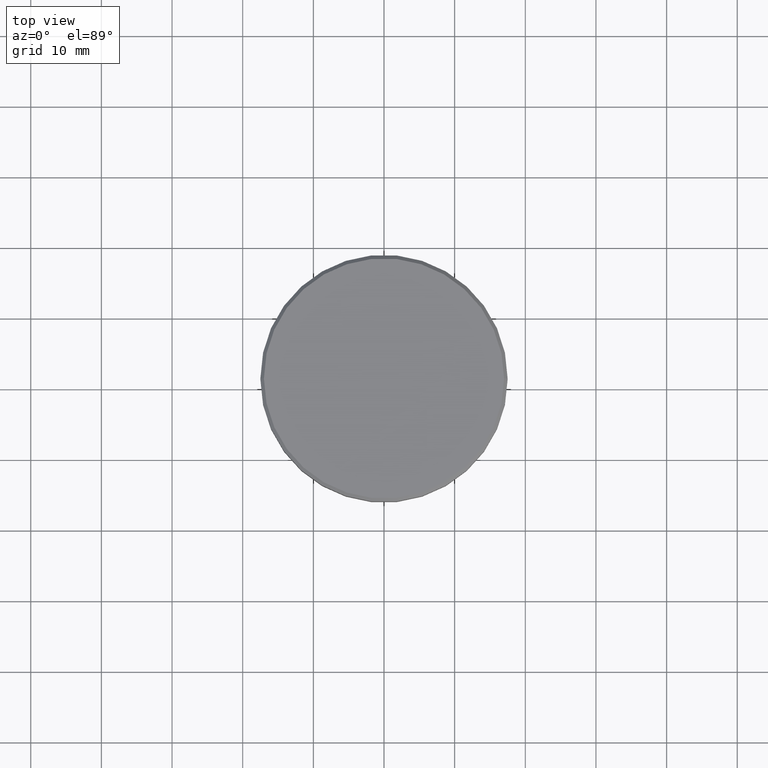
[diagram: clean part render]
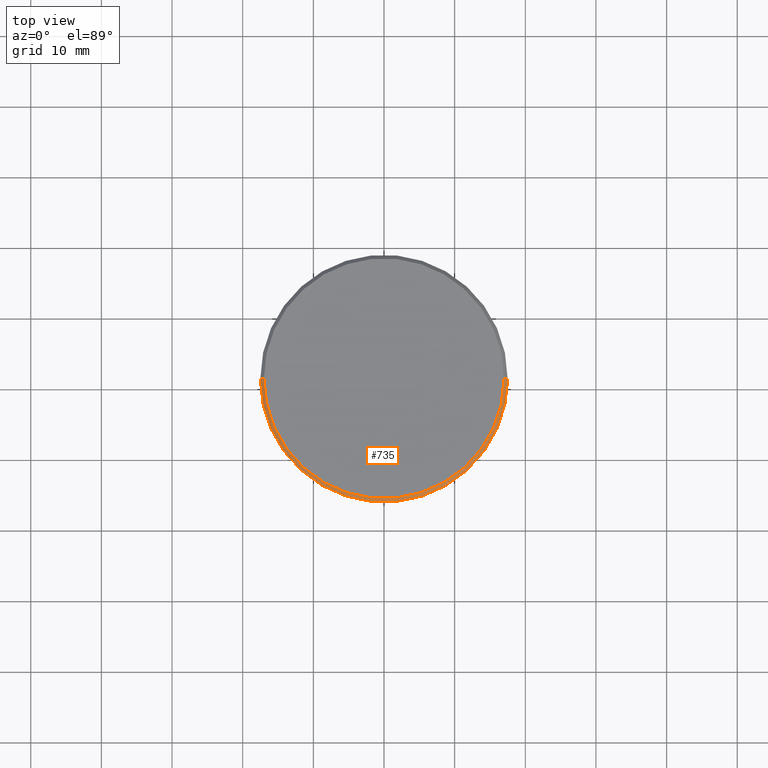
[diagram: same view with one face highlighted and labeled with its STEP entity id]
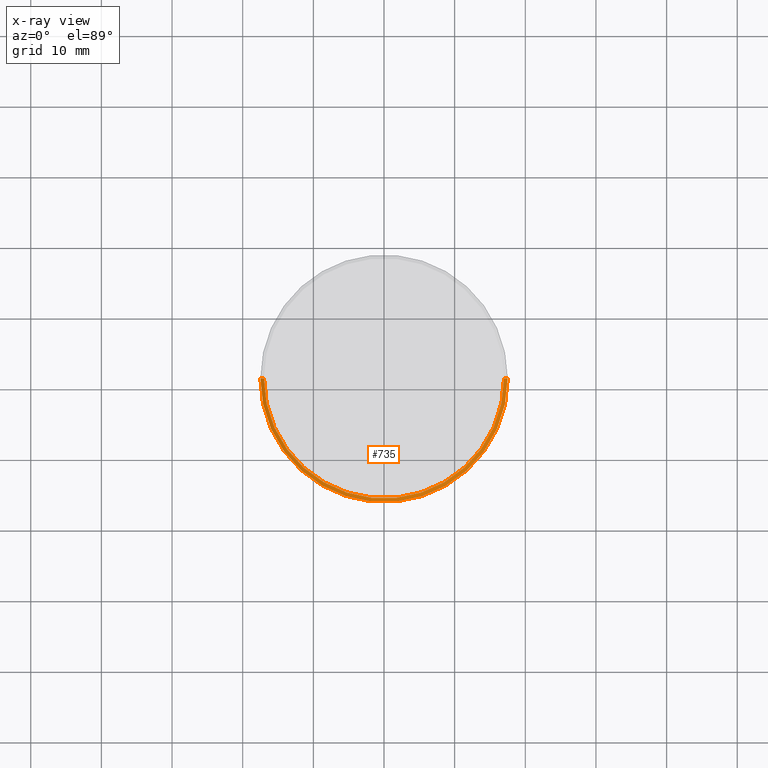
[diagram: x-ray of the same camera — body ghosted, the highlighted face saturated]
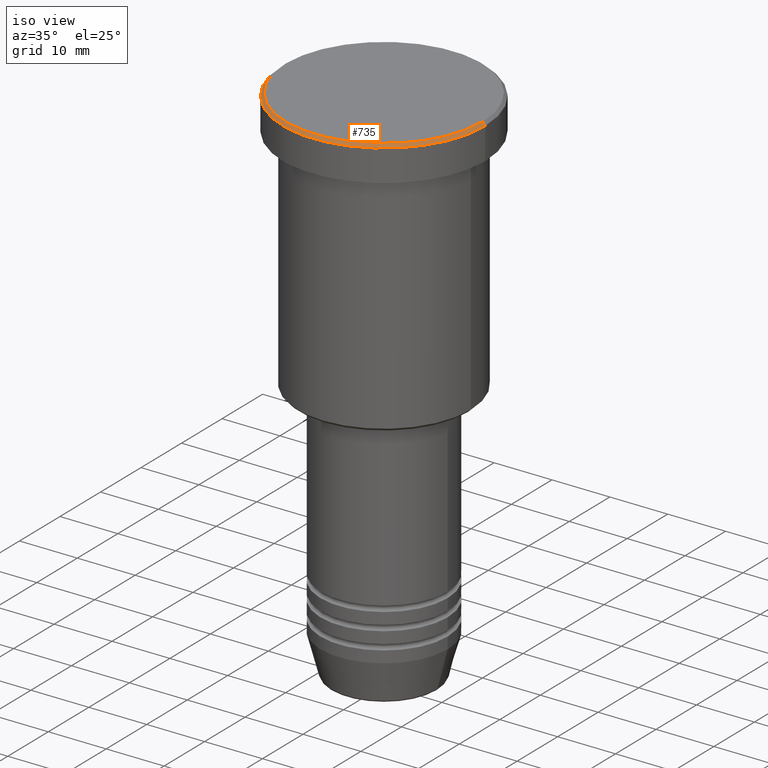
[diagram: same view with one face highlighted and labeled with its STEP entity id]
A machine part, top view. The second image highlights one B-rep face of the part: STEP entity #735.
The next image is the same camera in x-ray: the body ghosted, the highlighted face saturated — about 0% of this face is hidden behind the body in this view.
A second angle (iso view) of the same face is appended — the face is thin or edge-on in the first view.
In plain terms, the highlighted conical surface has half-angle 45 deg.
Its self-contained STEP definition (entity closure, byte-faithful):
#4 = LINE ( 'NONE', #558, #407 ) ;
#53 = EDGE_CURVE ( 'NONE', #490, #703, #931, .T. ) ;
#55 = CARTESIAN_POINT ( 'NONE',  ( 0.000000000000000000, 0.000000000000000000, 0.000000000000000000 ) ) ;
#66 = CARTESIAN_POINT ( 'NONE',  ( 0.000000000000000000, 0.000000000000000000, 0.000000000000000000 ) ) ;
#112 = CARTESIAN_POINT ( 'NONE',  ( 17.00000000000000000, 2.112515728529184067E-15, 0.000000000000000000 ) ) ;
#117 = LINE ( 'NONE', #950, #949 ) ;
#133 = ORIENTED_EDGE ( 'NONE', *, *, #53, .F. ) ;
#154 = CARTESIAN_POINT ( 'NONE',  ( 0.000000000000000000, 0.000000000000000000, -0.5000000000000142109 ) ) ;
#183 = AXIS2_PLACEMENT_3D ( 'NONE', #55, #799, #1172 ) ;
#222 = EDGE_CURVE ( 'NONE', #490, #639, #4, .T. ) ;
#267 = DIRECTION ( 'NONE',  ( -0.7071067811865378028, 0.000000000000000000, -0.7071067811865573427 ) ) ;
#315 = DIRECTION ( 'NONE',  ( 0.7071067811865378028, 8.659560562354814529E-17, -0.7071067811865573427 ) ) ;
#407 = VECTOR ( 'NONE', #267, 1000.000000000000000 ) ;
#410 = EDGE_CURVE ( 'NONE', #696, #639, #1129, .T. ) ;
#490 = VERTEX_POINT ( 'NONE', #1182 ) ;
#498 = ORIENTED_EDGE ( 'NONE', *, *, #410, .F. ) ;
#522 = DIRECTION ( 'NONE',  ( 0.000000000000000000, 0.000000000000000000, -1.000000000000000000 ) ) ;
#558 = CARTESIAN_POINT ( 'NONE',  ( -17.00000000000000000, 0.000000000000000000, 0.000000000000000000 ) ) ;
#612 = DIRECTION ( 'NONE',  ( 0.000000000000000000, 0.000000000000000000, -1.000000000000000000 ) ) ;
#626 = AXIS2_PLACEMENT_3D ( 'NONE', #154, #522, #891 ) ;
#627 = CONICAL_SURFACE ( 'NONE', #802, 17.00000000000000000, 0.7853981633974346233 ) ;
#635 = FACE_OUTER_BOUND ( 'NONE', #793, .T. ) ;
#639 = VERTEX_POINT ( 'NONE', #1113 ) ;
#643 = ORIENTED_EDGE ( 'NONE', *, *, #1058, .F. ) ;
#696 = VERTEX_POINT ( 'NONE', #1027 ) ;
#703 = VERTEX_POINT ( 'NONE', #112 ) ;
#735 = ADVANCED_FACE ( 'NONE', ( #635 ), #627, .T. ) ;
#793 = EDGE_LOOP ( 'NONE', ( #643, #133, #852, #498 ) ) ;
#799 = DIRECTION ( 'NONE',  ( -0.000000000000000000, -0.000000000000000000, 1.000000000000000000 ) ) ;
#802 = AXIS2_PLACEMENT_3D ( 'NONE', #66, #612, #994 ) ;
#852 = ORIENTED_EDGE ( 'NONE', *, *, #222, .T. ) ;
#891 = DIRECTION ( 'NONE',  ( 1.000000000000000000, 0.000000000000000000, 0.000000000000000000 ) ) ;
#931 = CIRCLE ( 'NONE', #183, 17.00000000000000000 ) ;
#949 = VECTOR ( 'NONE', #315, 1000.000000000000000 ) ;
#950 = CARTESIAN_POINT ( 'NONE',  ( 17.00000000000000000, 2.081899558550500280E-15, 0.000000000000000000 ) ) ;
#994 = DIRECTION ( 'NONE',  ( -1.000000000000000000, 0.000000000000000000, 0.000000000000000000 ) ) ;
#1027 = CARTESIAN_POINT ( 'NONE',  ( 17.50000000000000000, 0.000000000000000000, -0.5000000000000142109 ) ) ;
#1058 = EDGE_CURVE ( 'NONE', #703, #696, #117, .T. ) ;
#1113 = CARTESIAN_POINT ( 'NONE',  ( -17.50000000000000000, 2.143131898507868248E-15, -0.5000000000000142109 ) ) ;
#1129 = CIRCLE ( 'NONE', #626, 17.50000000000000000 ) ;
#1172 = DIRECTION ( 'NONE',  ( 1.000000000000000000, 0.000000000000000000, 0.000000000000000000 ) ) ;
#1182 = CARTESIAN_POINT ( 'NONE',  ( -17.00000000000000000, 0.000000000000000000, 0.000000000000000000 ) ) ;